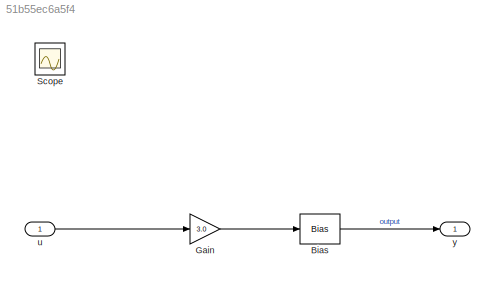
MODEL slx_51b55ec6a5f4
KIND model
CONFIG AbsTol = auto
CONFIG EnableMultiTasking = off
CONFIG FixedStep = auto
CONFIG MaxStep = auto
CONFIG MinStep = auto
CONFIG PreLoadFcn = t = [0.0 3.0 7.0 10.0]';\nu = [0.0 0.5 1.0 0.0]';
CONFIG RelTol = 1e-3
CONFIG SampleTimeConstraint = Unconstrained
CONFIG Solver = VariableStepAuto
CONFIG SolverName = VariableStepAuto
CONFIG StartTime = 0.0
CONFIG StopTime = 10.0
BLOCK [Bias] Bias
  Bias = 2.0
  SaturateOnIntegerOverflow = off
BLOCK [Gain] Gain
  Gain = 3.0
  OutDataTypeStr = Inherit: Inherit via internal rule
  ParamDataTypeStr = Inherit: Inherit via internal rule
  SaturateOnIntegerOverflow = off
BLOCK [Scope] Scope
  IOType = viewer
  NumInputPorts = 1
  Ports = []
  ScopeSpecificationString = Simulink.scopes.TimeScopeBlockCfg('CurrentConfiguration', extmgr.ConfigurationSet(extmgr.Configuration('Core','General UI',true),extmgr.Configuration('Core','Source UI',true),extmgr.Configuration('Sources','WiredSimulink',true),extmgr.Configuration('Visuals','Time Domain',true,'SerializedDisplays',{struct('MinYLimReal','1.625','MaxYLimReal','5.375','YLabelReal','','MinYLimMag','1.625','MaxYLimMag'...<+1463ch>
BLOCK [Inport] u 
  IconDisplay = Port number
BLOCK [Outport] y 
  IconDisplay = Port number
LINE Bias:1 -> y :1
LINE Gain:1 -> Bias:1
LINE u :1 -> Gain:1
